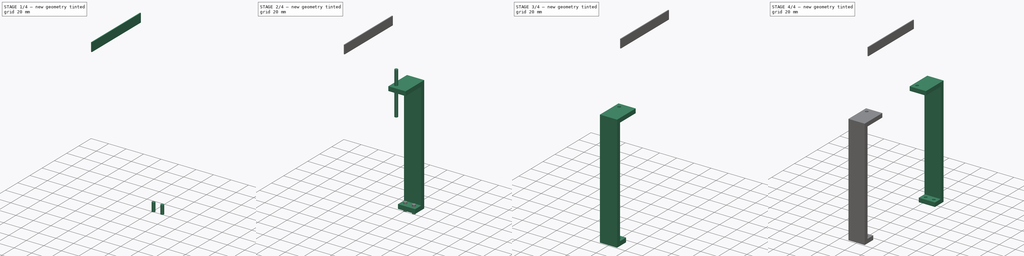
[diagram: build sequence overview — one tinted view per stage of 4, left to right]
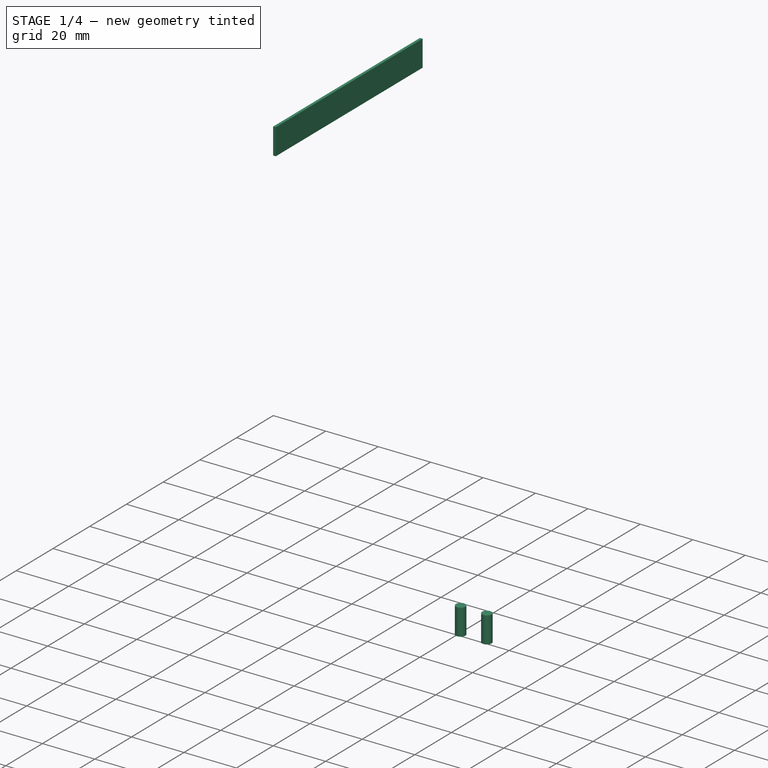
[diagram: stage 1 of 4 — iso view after this stage's code; geometry added in this stage tinted green]
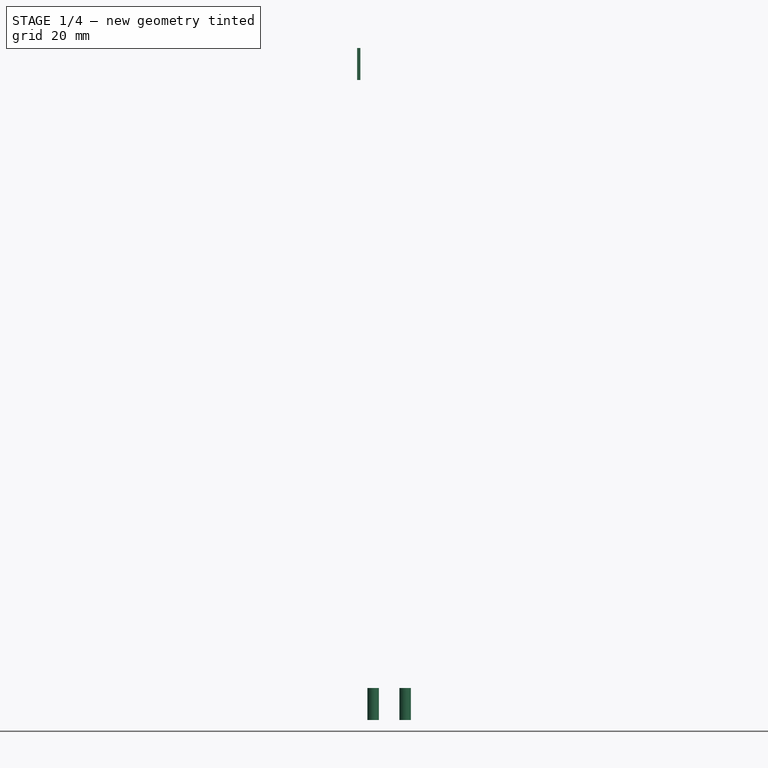
[diagram: stage 1 of 4 — front view after this stage's code; geometry added in this stage tinted green]
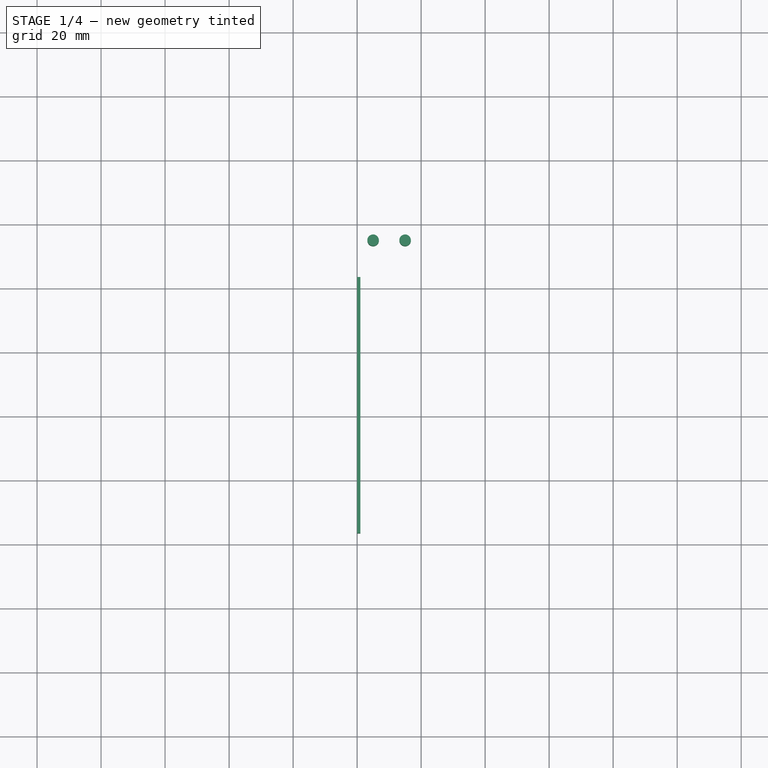
[diagram: stage 1 of 4 — top view after this stage's code; geometry added in this stage tinted green]
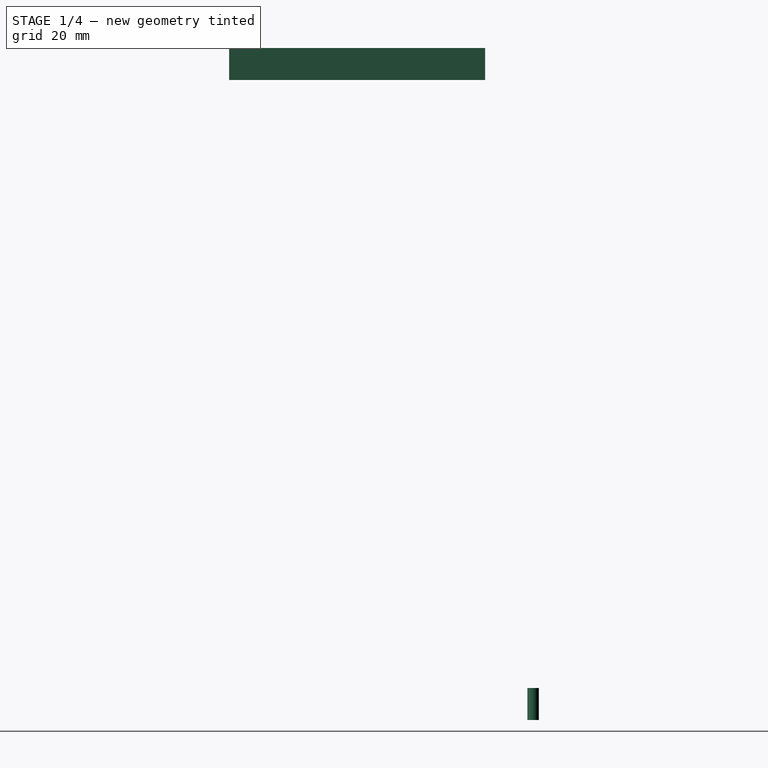
[diagram: stage 1 of 4 — right view after this stage's code; geometry added in this stage tinted green]
FCSTD DOCUMENT  (FreeCAD 0.18.4R)
Label: radiator_bracket
License: All rights reserved
LicenseURL: http://en.wikipedia.org/wiki/All_rights_reserved
objects: PartDesign::Body×7, App::Part×4, PartDesign::FeatureBase×4, Sketcher::SketchObject×2, Part::Cylinder×2, Spreadsheet::Sheet×1, PartDesign::Pad×1, Part::FeaturePython×1, Part::MultiFuse×1, Part::Cut×1, Part::Mirroring×1, Part::Box×1
note: 22 computed .brp shape members not serialized (recipe doc carries the construction recipe); baked Part::Feature solids carry a one-line shape summary decoded from their .brp

FEATURE [Part::Cylinder] Cylinder002
  Angle = 360
  AttacherType = Attacher::AttachEngine3D
  Height = 10
  Placement = pos=(5,55,0) rot=(0,0,1;0rad)
  Radius = 1.8
  expr: Placement.Base.y = p.radiator_space_width / 2 + 5
FEATURE [Part::FeaturePython] Array  # Draft array (typed FeaturePython)
  Angle = 360
  ArrayType = 0
  Axis = (0,0,1)
  Base = -> Cylinder002
  Center = (0,0,0)
  Fuse = false
  IntervalAxis = (0,0,0)
  IntervalX = (10,0,0)
  IntervalY = (0,1,0)
  IntervalZ = (0,0,1)
  NumberPolar = 1
  NumberX = 2
  NumberY = 1
  NumberZ = 1
  expr: IntervalX.x = p.bracket_width / 2
FEATURE [PartDesign::Body] Body006  label="body bracket right001"
  Group = -> [Clone003]
  Origin = -> Origin011
  Placement = pos=(-82,0,0) rot=(0,0,1;3.14159rad)
  Tip = -> Clone003
FEATURE [Part::Box] Box  label="Cube"
  AttacherType = Attacher::AttachEngine3D
  Height = 10
  Length = 80
  Placement = pos=(1,-40,200) rot=(0,0,1;1.5708rad)
  Width = 1
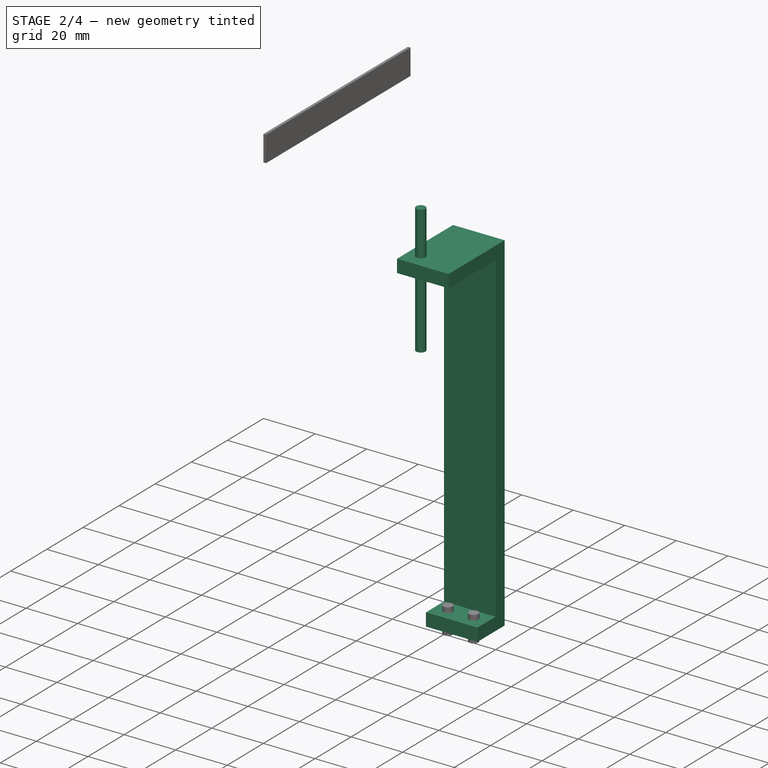
[diagram: stage 2 of 4 — iso view after this stage's code; geometry added in this stage tinted green]
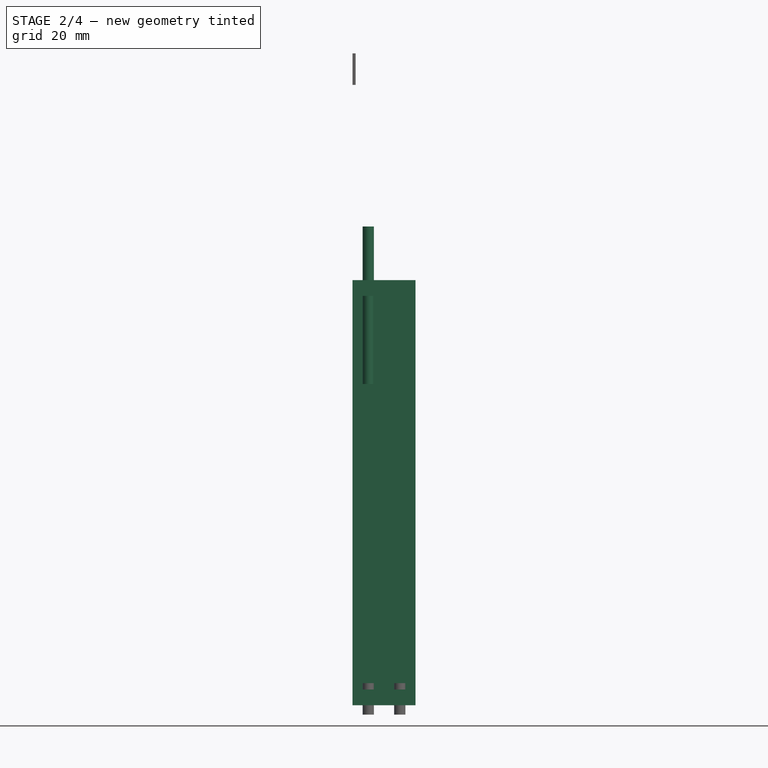
[diagram: stage 2 of 4 — front view after this stage's code; geometry added in this stage tinted green]
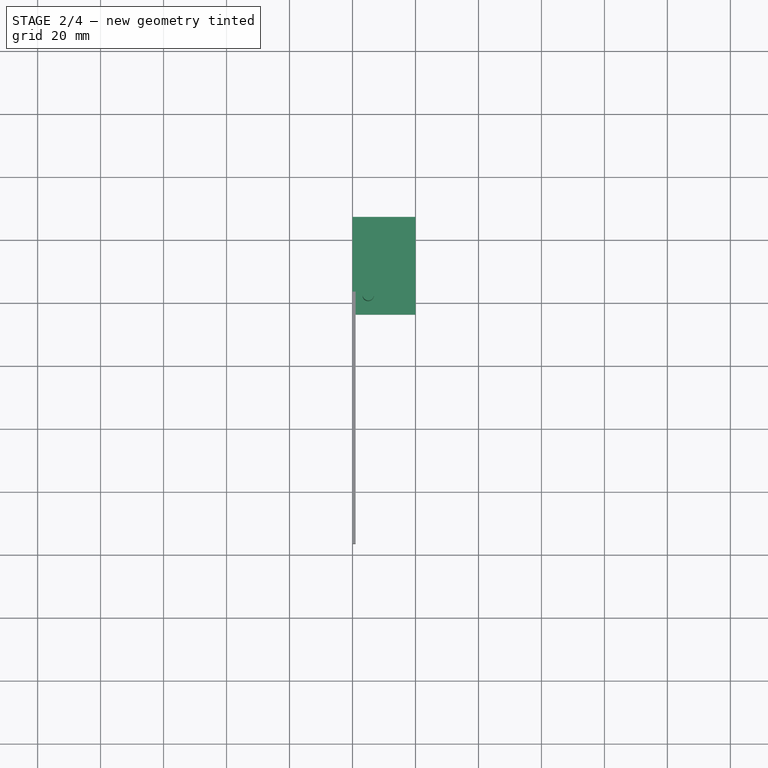
[diagram: stage 2 of 4 — top view after this stage's code; geometry added in this stage tinted green]
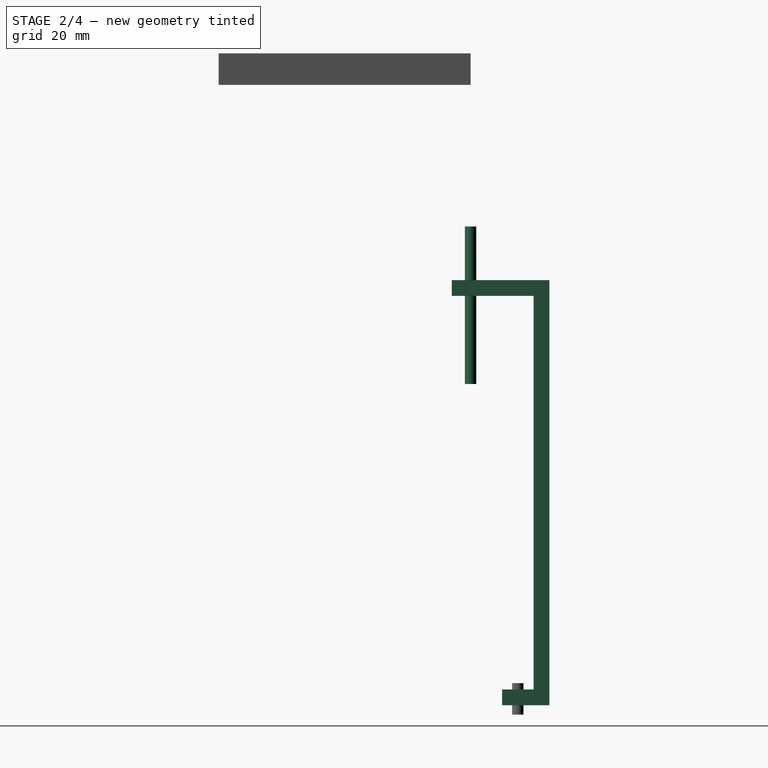
[diagram: stage 2 of 4 — right view after this stage's code; geometry added in this stage tinted green]
FEATURE [Spreadsheet::Sheet] Spreadsheet  label="p"
  cells = A1=radiator_ring_hole_dist; B1(radiator_ring_hole_dist)=80; A2=radiator_space_height; B2(radiator_space_height)==130 - B4; A3=radiator_space_width; B3(radiator_space_width)=100; A4=bracket_thickness; B4(bracket_thickness)=5; A5=bracket_width; B5(bracket_width)=20
FEATURE [PartDesign::Body] Body  label="bracket body"
  Origin = -> Origin001
FEATURE [App::Part] Part
  Group = -> [Body]
  Origin = -> Origin
FEATURE [Sketcher::SketchObject] Sketch
  MapMode = 5
  Placement = pos=(0,0,0) rot=(0.57735,0.57735,0.57735;2.0944rad)
  Support = -> [YZ_Plane003]
  expr: Constraints[19] = p.radiator_space_width / 2
  expr: Constraints[23] = p.radiator_space_height
  expr: Constraints[21] = p.radiator_ring_hole_dist / 2 - 6
  expr: Constraints[11] = p.radiator_space_width / 2 + 10
  expr: Constraints[22] = p.bracket_thickness
  expr: Constraints[9] = p.bracket_thickness
  expr: Constraints[8] = p.bracket_thickness
  sketch-geometry (8):
    g0: LineSegment StartX=65 StartY=138 StartZ=0 EndX=65 EndY=3 EndZ=0
    g1: LineSegment StartX=60 StartY=133 StartZ=0 EndX=60 EndY=8 EndZ=0
    g2: LineSegment StartX=60 StartY=133 StartZ=0 EndX=34 EndY=133 EndZ=0
    g3: LineSegment StartX=34 StartY=133 StartZ=0 EndX=34 EndY=138 EndZ=0
    g4: LineSegment StartX=34 StartY=138 StartZ=0 EndX=65 EndY=138 EndZ=0
    g5: LineSegment StartX=50 StartY=8 StartZ=0 EndX=60 EndY=8 EndZ=0
    g6: LineSegment StartX=65 StartY=3 StartZ=0 EndX=50 EndY=3 EndZ=0
    g7: LineSegment StartX=50 StartY=8 StartZ=0 EndX=50 EndY=3 EndZ=0
  constraints (24):
    c: Vertical(g0)
    c: Vertical(g1)
    c: Coincident(g1,g2)
    c: Coincident(g2,g3)
    c: Vertical(g3)
    c: Coincident(g3,g4)
    c: Coincident(g4,g0)
    c: Horizontal(g4)
    c: DistanceX(g1,g0) = 5
    c: DistanceY(g0,g1) = 5
    c: DistanceY(g-1,g0) = 3
    c: DistanceX(g-1,g1) = 60
    c: Coincident(g5,g1)
    c: Horizontal(g5)
    c: Coincident(g6,g0)
    c: Horizontal(g6)
    c: Coincident(g7,g5)
    c: Coincident(g7,g6)
    c: Vertical(g7)
    c: DistanceX(g-1,g6) = 50
    c: Horizontal(g2)
    c: DistanceX(g-1,g2) = 34
    c: DistanceY(g2,g3) = 5
    c: DistanceY(g1,g1) = 125
FEATURE [PartDesign::Pad] Pad
  Length = 20
  Length2 = 100
  Placement = pos=(0,0,0) rot=(0.57735,0.57735,0.57735;2.0944rad)
  Profile = -> Sketch
  Type = 0
  expr: Length = p.bracket_width
FEATURE [Part::Cylinder] Cylinder
  Angle = 360
  AttacherType = Attacher::AttachEngine3D
  Height = 50
  Placement = pos=(5,40,105) rot=(0,0,1;0rad)
  Radius = 1.8
  expr: Placement.Base.z = p.radiator_space_height - 20
  expr: Placement.Base.y = p.radiator_ring_hole_dist / 2
FEATURE [Part::MultiFuse] Fusion
  Shapes = -> [Cylinder002,Cylinder,Array]
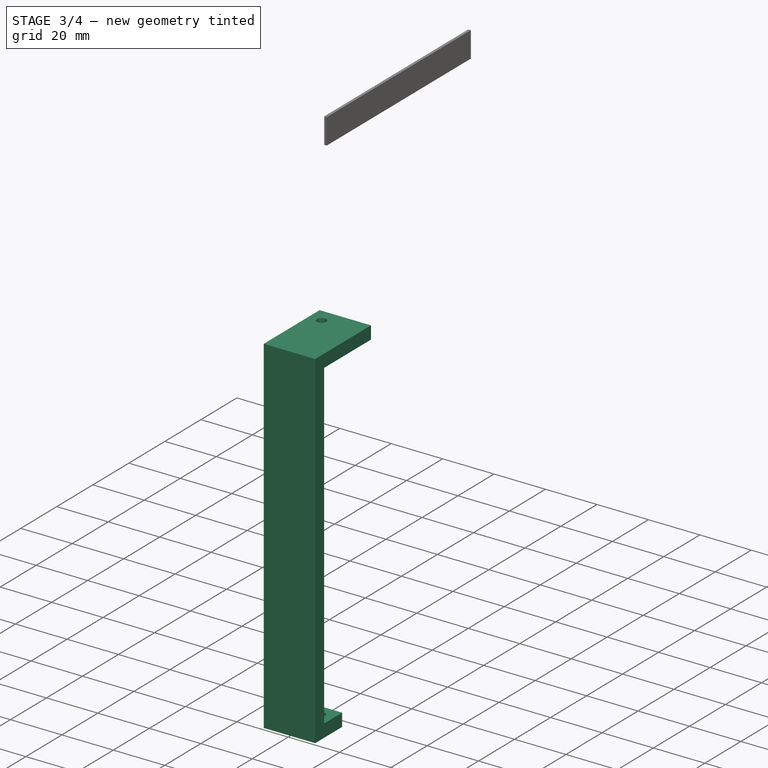
[diagram: stage 3 of 4 — iso view after this stage's code; geometry added in this stage tinted green]
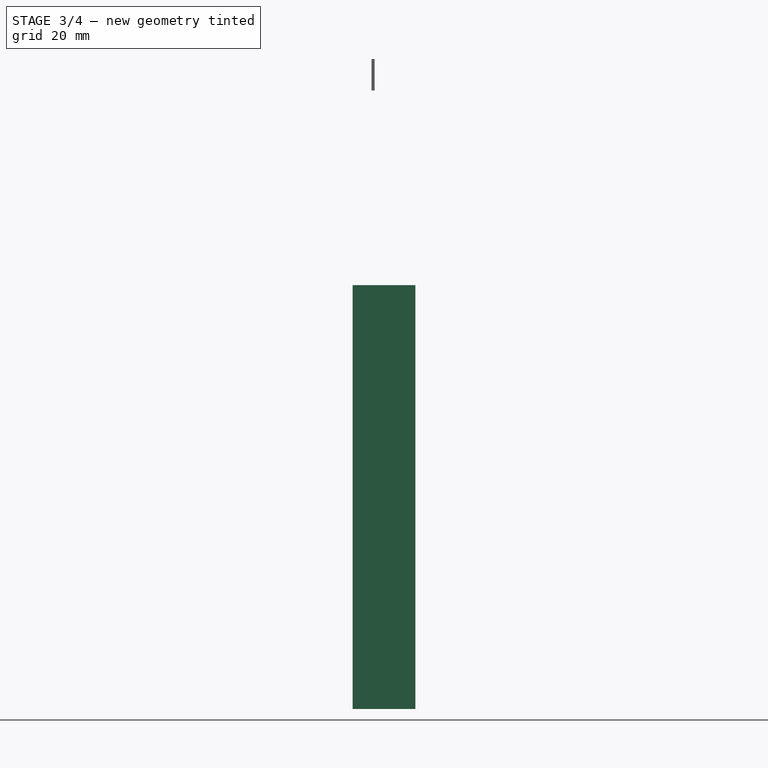
[diagram: stage 3 of 4 — front view after this stage's code; geometry added in this stage tinted green]
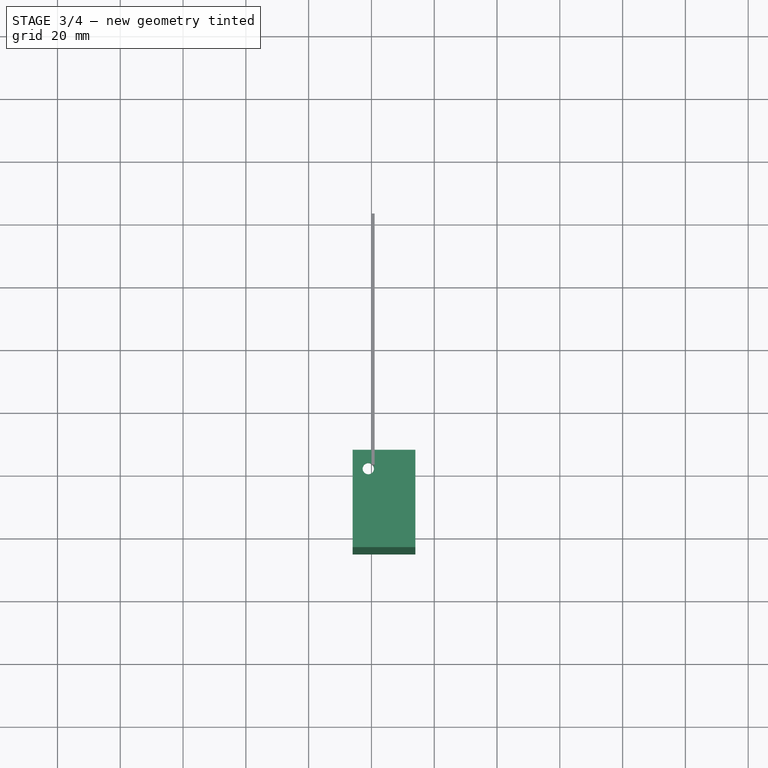
[diagram: stage 3 of 4 — top view after this stage's code; geometry added in this stage tinted green]
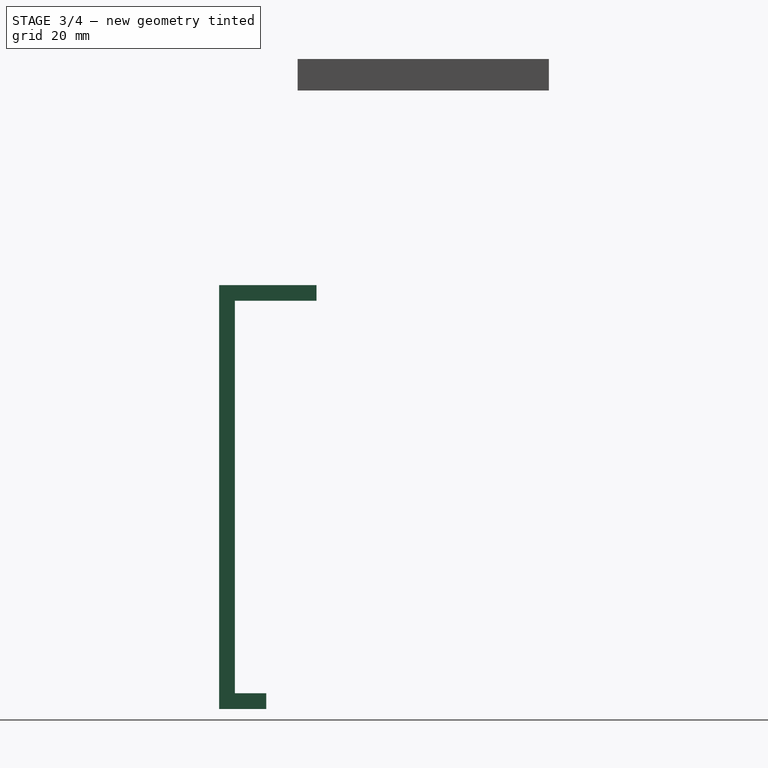
[diagram: stage 3 of 4 — right view after this stage's code; geometry added in this stage tinted green]
FEATURE [Part::Cut] Cut  label="bracket left"
  Base = -> Pad
  Placement = pos=(-6,0,0) rot=(0,0,1;0rad)
  Tool = -> Fusion
FEATURE [Part::Mirroring] Part__Mirroring  label="bracket right"
  Base = (0,0,0)
  Normal = (0,1,0)
  Source = -> Cut
FEATURE [PartDesign::Body] Body005  label="body bracket left001"
  Group = -> [Clone002]
  Origin = -> Origin010
  Placement = pos=(-6,0,0) rot=(0,0,1;0rad)
  Tip = -> Clone002
FEATURE [PartDesign::FeatureBase] Clone003
  BaseFeature = -> Part__Mirroring
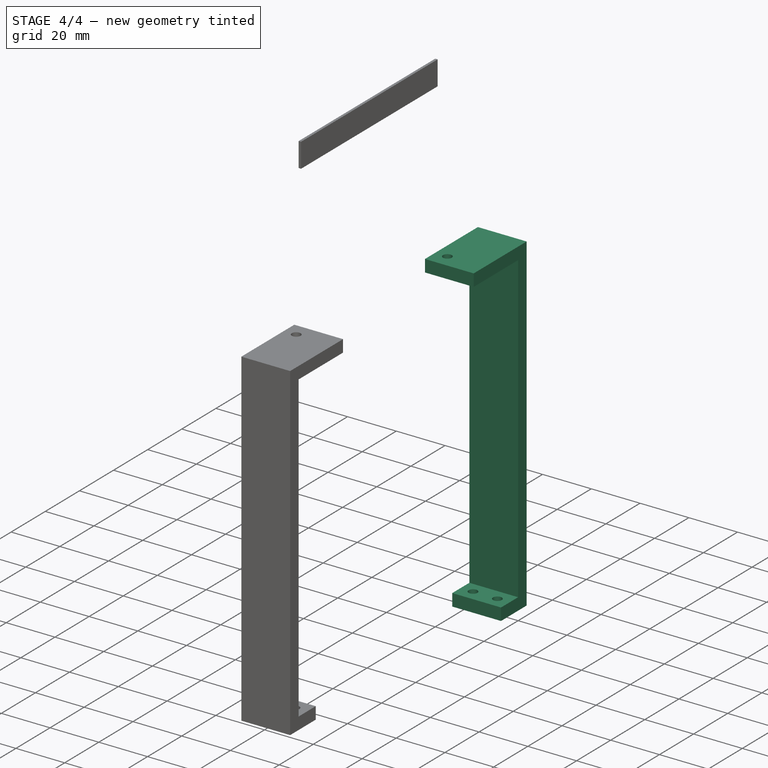
[diagram: stage 4 of 4 — iso view after this stage's code; geometry added in this stage tinted green]
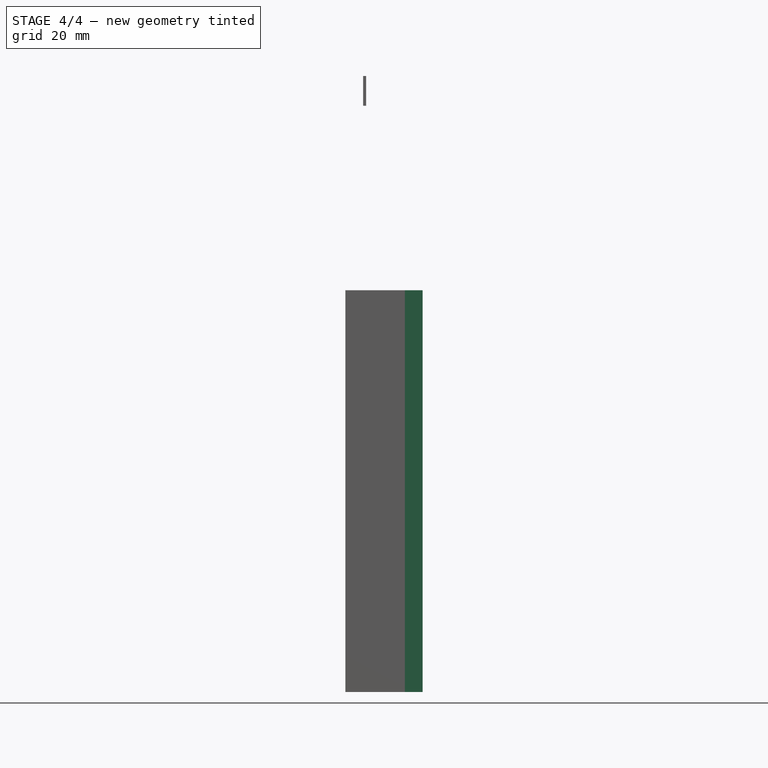
[diagram: stage 4 of 4 — front view after this stage's code; geometry added in this stage tinted green]
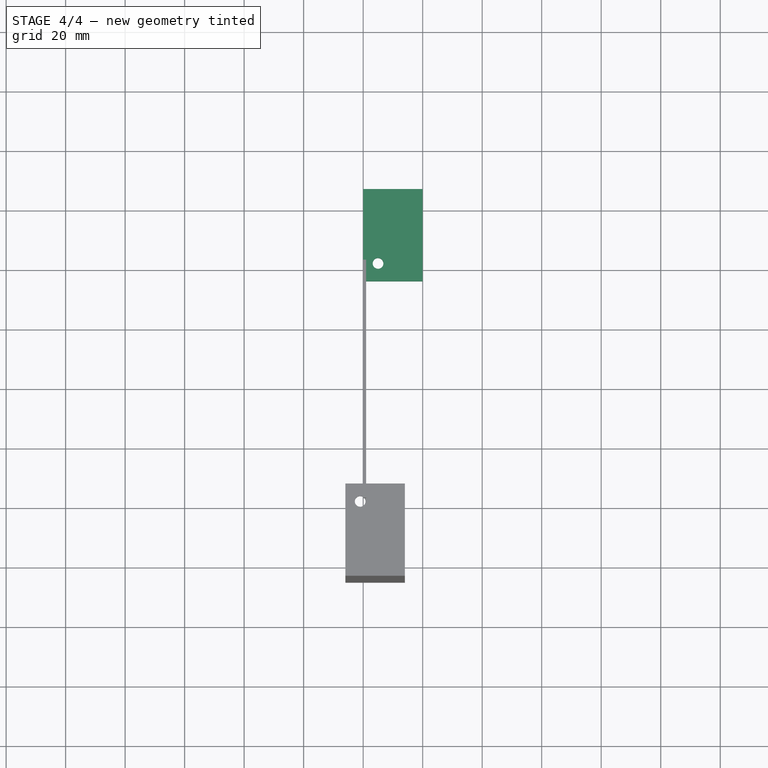
[diagram: stage 4 of 4 — top view after this stage's code; geometry added in this stage tinted green]
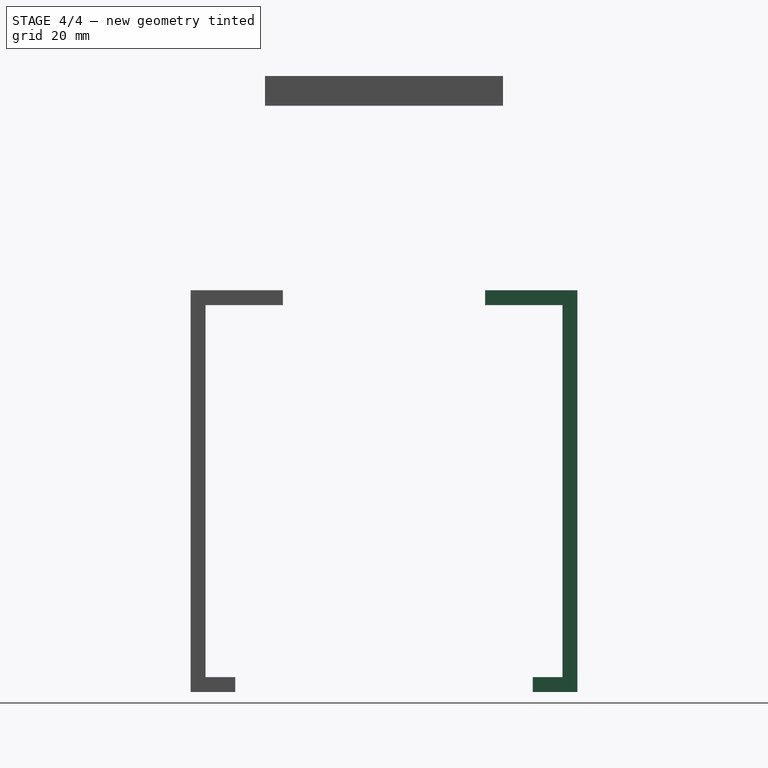
[diagram: stage 4 of 4 — right view after this stage's code; geometry added in this stage tinted green]
FEATURE [PartDesign::Body] PadBody
  Origin = -> Origin003
FEATURE [App::Part] Part001
  Group = -> [PadBody]
  Origin = -> Origin002
FEATURE [App::Part] Part002
  Group = -> [Cut,Array,Sketch,Pad,Cylinder,Cylinder002,Fusion,Part__Mirroring]
  Origin = -> Origin005
FEATURE [Sketcher::SketchObject] Sketch001
  MapMode = 5
  Support = -> [XY_Plane004]
  sketch-geometry (12):
    g0: LineSegment StartX=80.4522 StartY=-74.93 StartZ=0 EndX=-111.03 EndY=-74.93 EndZ=0
    g1: LineSegment StartX=-111.03 StartY=-74.93 StartZ=0 EndX=-111.03 EndY=74.93 EndZ=0
    g2: LineSegment StartX=-111.03 StartY=74.93 StartZ=0 EndX=80.4522 EndY=74.93 EndZ=0
    g3: LineSegment StartX=80.4522 StartY=74.93 StartZ=0 EndX=80.4522 EndY=-74.93 EndZ=0
    g4: Circle CenterX=8.97 CenterY=-55.07 CenterZ=0 NormalX=0 NormalY=0 NormalZ=1 AngleXU=0 Radius=2.1
    g5: Circle CenterX=-1.03 CenterY=-55.07 CenterZ=0 NormalX=0 NormalY=0 NormalZ=1 AngleXU=0 Radius=2.1
    g6: Circle CenterX=-81.03 CenterY=-55.07 CenterZ=0 NormalX=0 NormalY=0 NormalZ=1 AngleXU=0 Radius=2.1
    g7: Circle CenterX=-91.03 CenterY=-55.07 CenterZ=0 NormalX=0 NormalY=0 NormalZ=1 AngleXU=0 Radius=2.1
    g8: Circle CenterX=-1.03 CenterY=54.93 CenterZ=0 NormalX=0 NormalY=0 NormalZ=1 AngleXU=0 Radius=2.1
    g9: Circle CenterX=8.97 CenterY=54.93 CenterZ=0 NormalX=0 NormalY=0 NormalZ=1 AngleXU=0 Radius=2.1
    g10: Circle CenterX=-81.03 CenterY=54.93 CenterZ=0 NormalX=0 NormalY=0 NormalZ=1 AngleXU=0 Radius=2.1
    g11: Circle CenterX=-91.03 CenterY=54.93 CenterZ=0 NormalX=0 NormalY=0 NormalZ=1 AngleXU=0 Radius=2.1
  constraints (34):
    c: Coincident(g0,g1)
    c: Coincident(g1,g2)
    c: Coincident(g2,g3)
    c: Coincident(g3,g0)
    c: Horizontal(g0)
    c: Horizontal(g2)
    c: Vertical(g1)
    c: DistanceY(g5,g4) = 0
    c: DistanceX(g5,g4) = 10
    c: Symmetric(g0,g2,g-1)
    c: Radius(g5) = 2.1
    c: Equal(g4,g5)
    c: DistanceY(g7,g6) = 0
    c: DistanceX(g7,g6) = 10
    c: Equal(g5,g7) = 2.1
    c: Equal(g6,g7)
    c: DistanceY(g8,g9) = 0
    c: DistanceX(g8,g9) = 10
    c: Equal(g5,g8) = 2.1
    c: Equal(g9,g8)
    c: DistanceY(g11,g10) = 0
    c: DistanceX(g11,g10) = 10
    c: Equal(g5,g11) = 2.1
    c: Equal(g10,g11)
    c: DistanceY(g10,g8) = 0
    c: DistanceY(g6,g5) = 0
    c: DistanceX(g5,g8) = 0
    c: DistanceX(g10,g6) = 0
    c: DistanceY(g5,g8) = 110
    c: DistanceX(g10,g8) = 80
    c: DistanceX(g6,g-1) = 81.03
    c: DistanceY(g6,g-1) = 55.07
    c: DistanceX(g1,g11) = 20
    c: DistanceY(g11,g1) = 20
FEATURE [PartDesign::Body] Body001
  Group = -> [Sketch001]
  Origin = -> Origin004
FEATURE [App::Part] Part003  label="bottom part"
  Group = -> [Body001]
  Origin = -> Origin006
FEATURE [PartDesign::FeatureBase] Clone
  BaseFeature = -> Cut
FEATURE [PartDesign::Body] Body002  label="body bracket left"
  BaseFeature = -> Cut
  Group = -> [Clone]
  Origin = -> Origin007
  Placement = pos=(-76,0,0) rot=(0,0,1;3.14159rad)
  Tip = -> Clone
FEATURE [PartDesign::FeatureBase] Clone001
  BaseFeature = -> Part__Mirroring
FEATURE [PartDesign::Body] Body003  label="body bracket right"
  BaseFeature = -> Part__Mirroring
  Group = -> [Clone001]
  Origin = -> Origin008
  Tip = -> Clone001
FEATURE [PartDesign::FeatureBase] Clone002
  BaseFeature = -> Cut
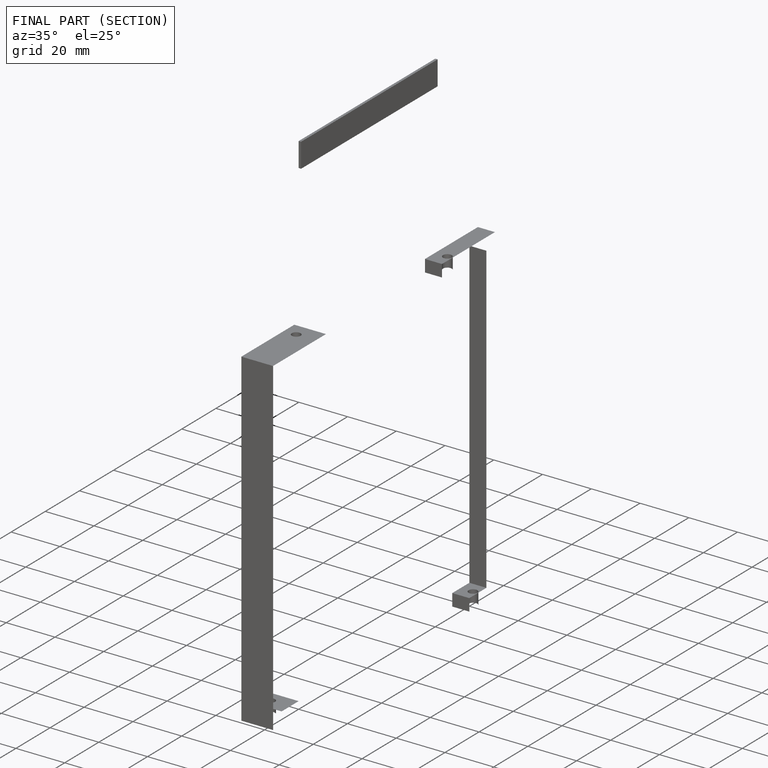
[diagram: finished part — half-section view (interior)]
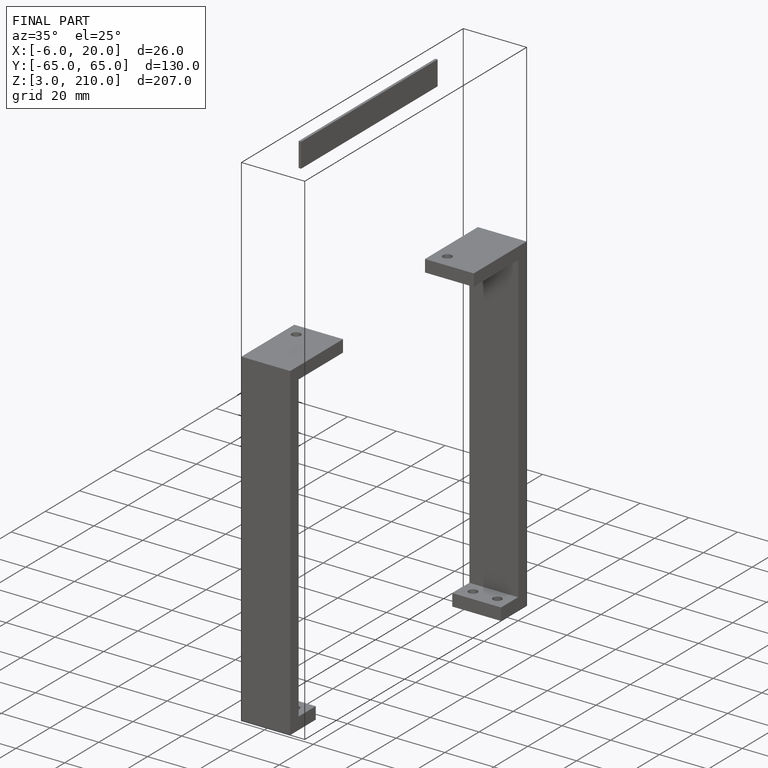
[diagram: finished part — iso view with bounding-box wireframe]
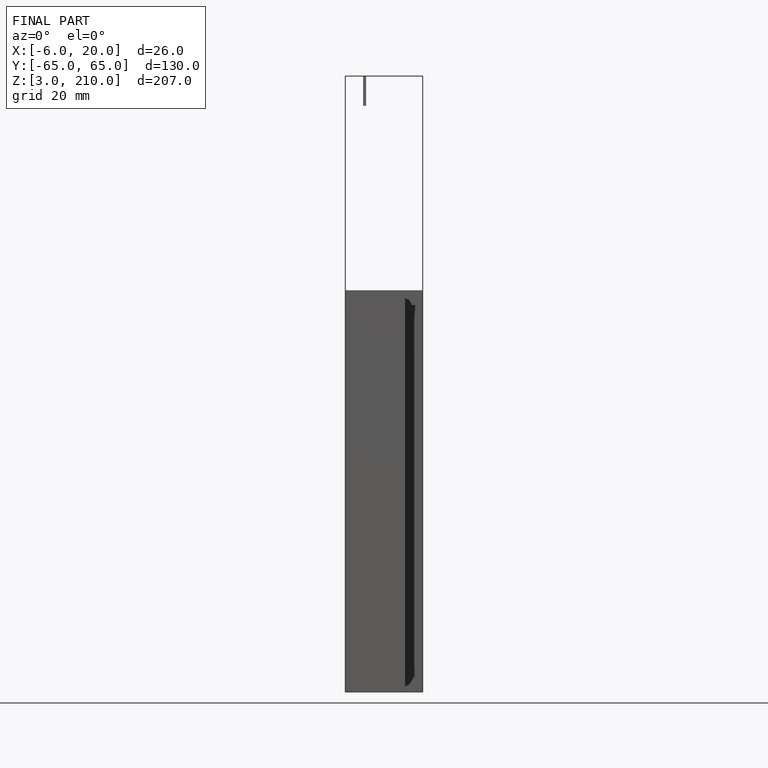
[diagram: finished part — front view with bounding-box wireframe]
